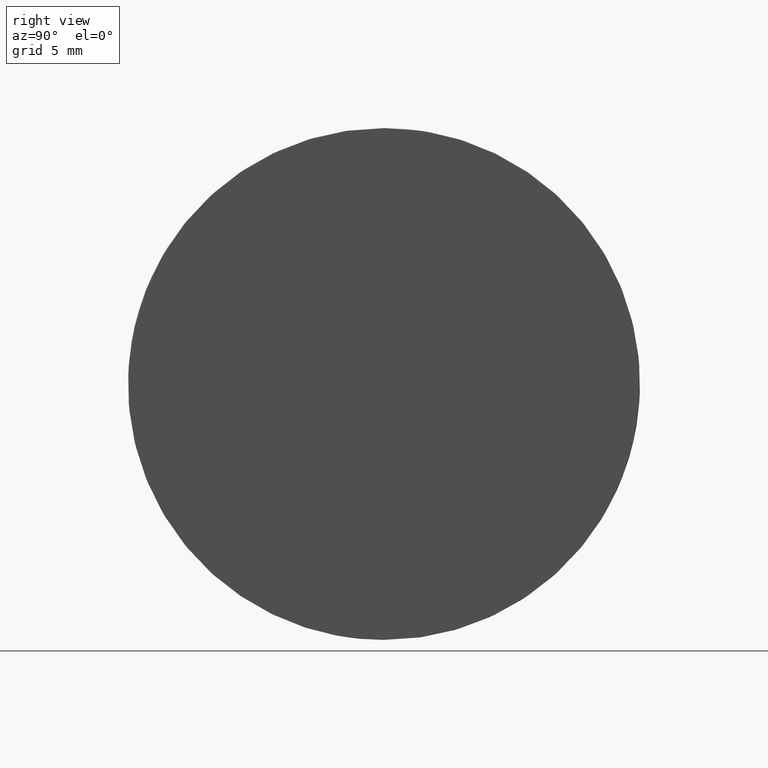
[diagram: clean part render]
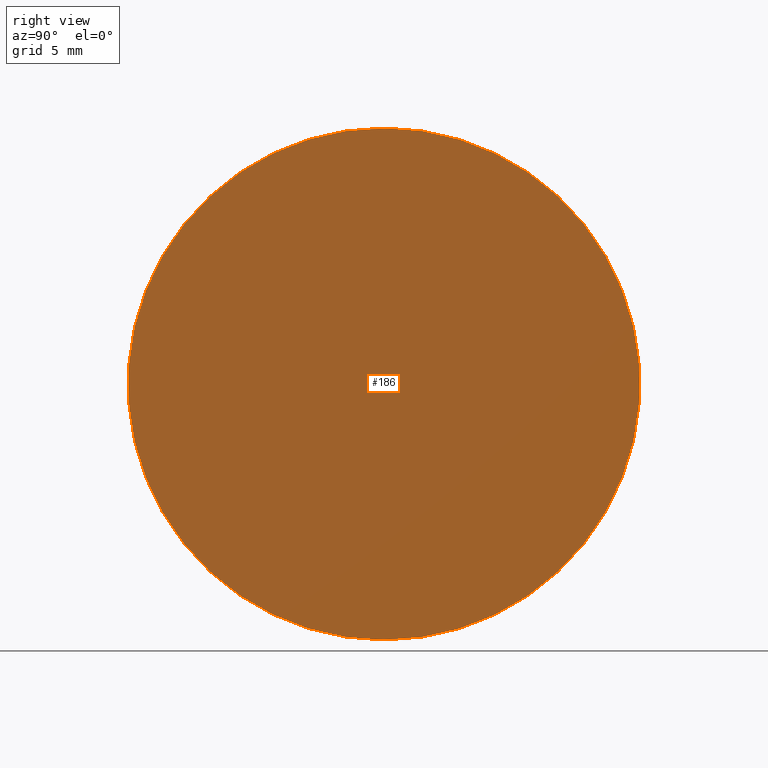
[diagram: same view with one face highlighted and labeled with its STEP entity id]
A machine part, right view. The second image highlights one B-rep face of the part: STEP entity #186.
In plain terms, the highlighted planar face has unit normal (1, 0, -0).
Its self-contained STEP definition (entity closure, byte-faithful):
#16 = CIRCLE ( 'NONE', #75, 12.50000000000000500 ) ;
#27 = FACE_OUTER_BOUND ( 'NONE', #87, .T. ) ;
#28 = EDGE_CURVE ( 'NONE', #58, #229, #16, .T. ) ;
#42 = DIRECTION ( 'NONE',  ( 1.000000000000000000, 0.0000000000000000000, -2.510324564891254900E-016 ) ) ;
#43 = EDGE_CURVE ( 'NONE', #229, #58, #73, .T. ) ;
#45 = DIRECTION ( 'NONE',  ( -2.775557561562892300E-016, 0.0000000000000000000, -1.000000000000000000 ) ) ;
#50 = CARTESIAN_POINT ( 'NONE',  ( -16.27479566514873400, 12.50000000000000000, 4.517163217129455500E-015 ) ) ;
#58 = VERTEX_POINT ( 'NONE', #162 ) ;
#59 = ORIENTED_EDGE ( 'NONE', *, *, #28, .T. ) ;
#63 = ORIENTED_EDGE ( 'NONE', *, *, #43, .T. ) ;
#67 = PLANE ( 'NONE',  #203 ) ;
#73 = CIRCLE ( 'NONE', #145, 12.50000000000000500 ) ;
#75 = AXIS2_PLACEMENT_3D ( 'NONE', #50, #42, #140 ) ;
#78 = CARTESIAN_POINT ( 'NONE',  ( -16.27479566514873700, 12.50000000000000000, -12.50000000000000000 ) ) ;
#84 = CARTESIAN_POINT ( 'NONE',  ( -16.27479566514873400, 12.50000000000000000, 4.517163217129455500E-015 ) ) ;
#87 = EDGE_LOOP ( 'NONE', ( #63, #59 ) ) ;
#118 = DIRECTION ( 'NONE',  ( 1.000000000000000000, 0.0000000000000000000, -2.775557561562892300E-016 ) ) ;
#140 = DIRECTION ( 'NONE',  ( -2.775557561562890400E-016, 0.0000000000000000000, -1.000000000000000000 ) ) ;
#145 = AXIS2_PLACEMENT_3D ( 'NONE', #84, #210, #191 ) ;
#162 = CARTESIAN_POINT ( 'NONE',  ( -16.27479566514873000, 12.50000000000000200, 12.50000000000001100 ) ) ;
#186 = ADVANCED_FACE ( 'NONE', ( #27 ), #67, .T. ) ;
#191 = DIRECTION ( 'NONE',  ( -2.775557561562890400E-016, 0.0000000000000000000, -1.000000000000000000 ) ) ;
#193 = CARTESIAN_POINT ( 'NONE',  ( -16.27479566514873700, 25.00000000000000000, -12.49999999999999100 ) ) ;
#203 = AXIS2_PLACEMENT_3D ( 'NONE', #193, #118, #45 ) ;
#210 = DIRECTION ( 'NONE',  ( 1.000000000000000000, 0.0000000000000000000, -2.510324564891254900E-016 ) ) ;
#229 = VERTEX_POINT ( 'NONE', #78 ) ;